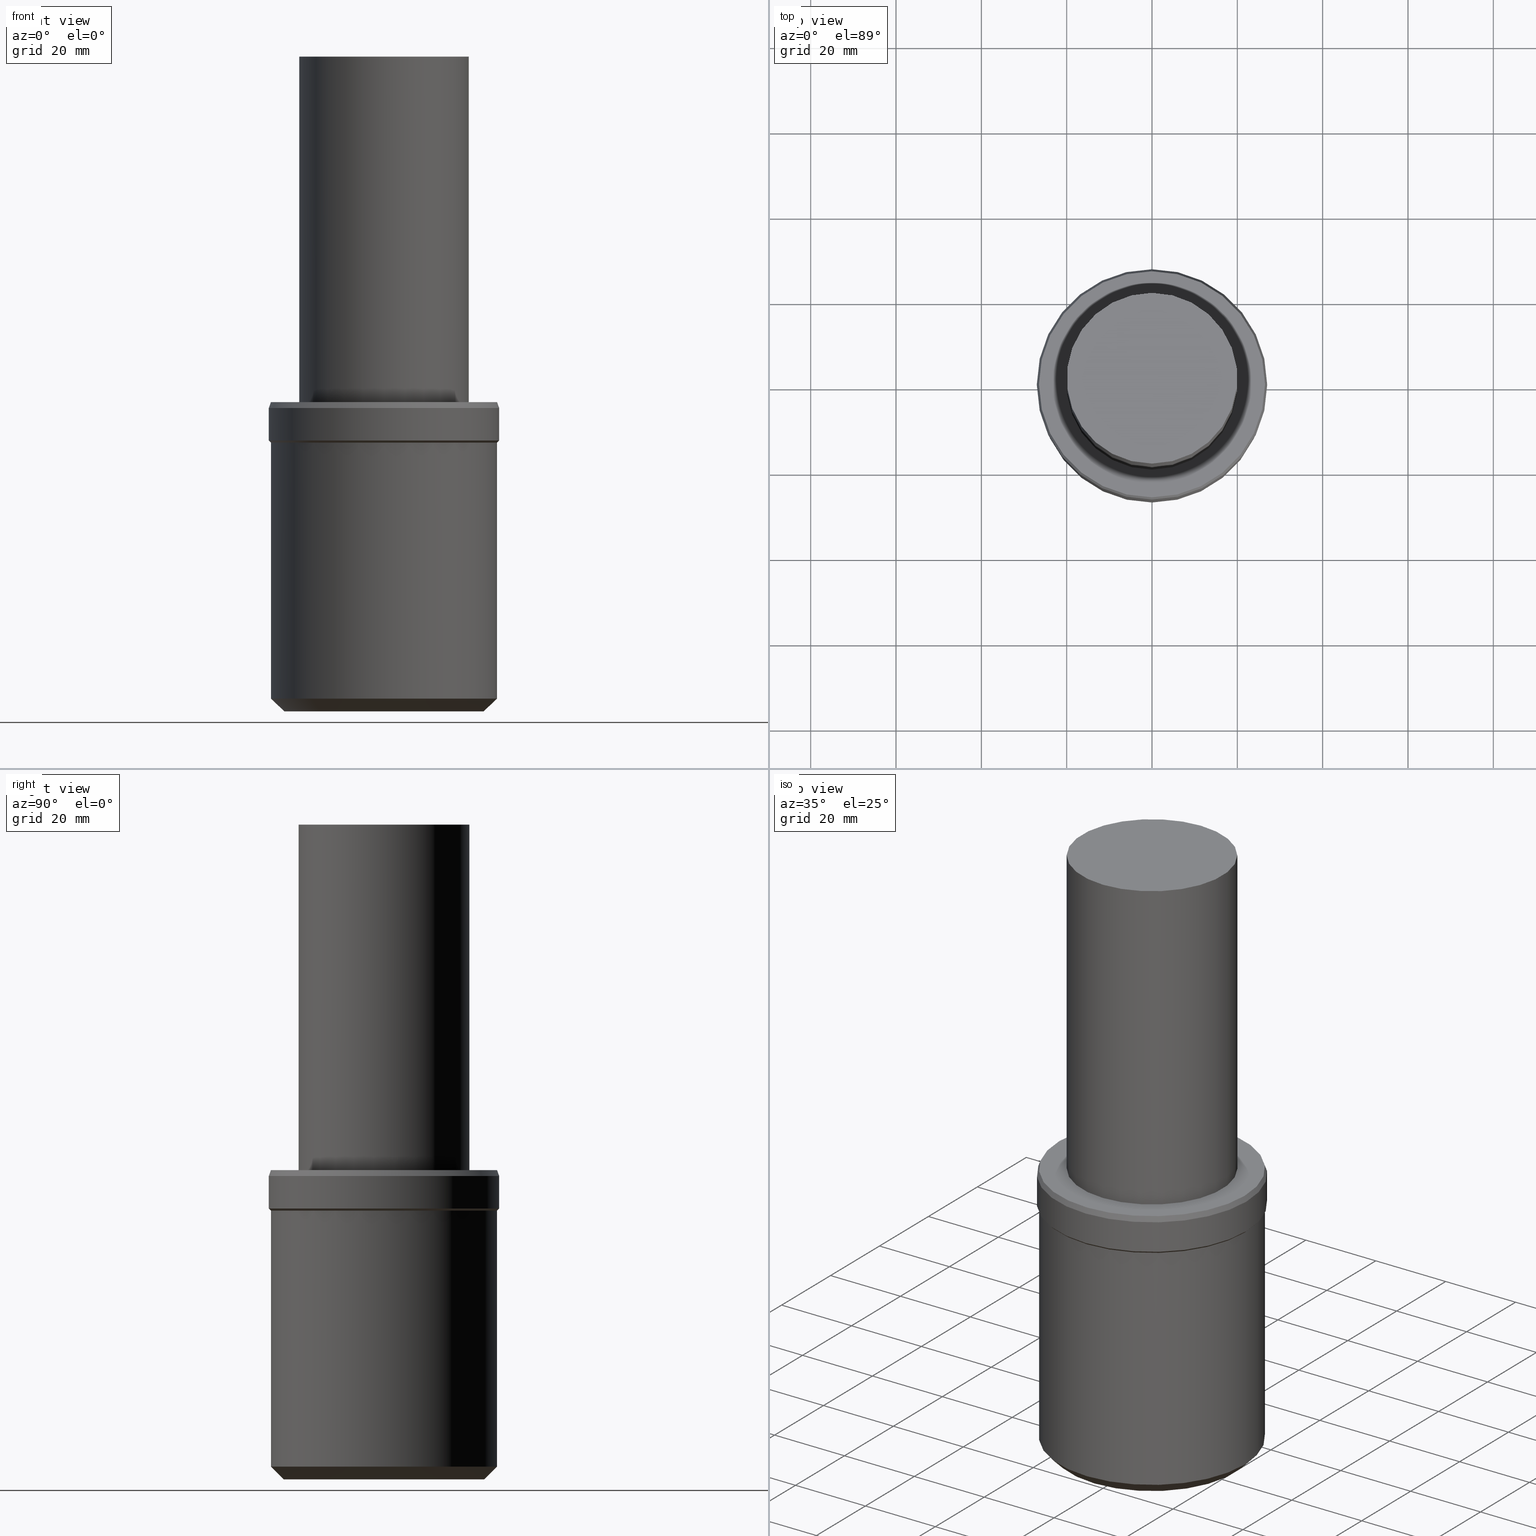
[diagram: canonical four-view strip — front | top / right | iso, engineering-drawing reading convention]
A machine part, canonical four-view strip (front | top / right | iso — engineering-drawing reading convention). The complete STEP part file that produces these views, byte-faithful:
ISO-10303-21;
HEADER;
FILE_DESCRIPTION((''),'1');
FILE_NAME('V:/02_3D_Field-HP\X2\FF71FF6FFF8CFF9F5916\X0\2013/02_Step_Field-HP\X2\FF71FF6FFF8CFF9F5916\X0\2013/31_\X2\30E130AC30B730F330AF30ED30BF30C330D430F330B030DB30EB30C0\X0\ MGT/MGT_ANSI_STEP/MGT36-AP1-2.5.stp','2018-02-02T01:19:14',(''),(''),'Spatial Interop R21 SP3','Kubotek KeyCreator 2011 V10.0.2 (22737)',' ');
FILE_SCHEMA(('automotive_design'));
ENDSEC;
DATA;
#1=MECHANICAL_DESIGN_GEOMETRIC_PRESENTATION_REPRESENTATION(' ',(#10,#11,#12,#13,#14,#15,#16,#17,#18,#19,#20,#21,#22,#23,#24,#25,#26,#27),#6);
#2=PRODUCT_DEFINITION_CONTEXT('',#28,'design');
#3=APPLICATION_PROTOCOL_DEFINITION('INTERNATIONAL STANDARD','automotive_design',1994,#28);
#4=PRODUCT_CATEGORY_RELATIONSHIP('NONE','NONE',#29,#30);
#5=SHAPE_DEFINITION_REPRESENTATION(#31,#32);
#6= (GEOMETRIC_REPRESENTATION_CONTEXT(3)GLOBAL_UNCERTAINTY_ASSIGNED_CONTEXT((#35))GLOBAL_UNIT_ASSIGNED_CONTEXT((#37,#38,#39))REPRESENTATION_CONTEXT('NONE','WORKSPACE'));
#10=STYLED_ITEM('',(#41),#42);
#11=STYLED_ITEM('',(#43),#44);
#12=STYLED_ITEM('',(#45,#46),#47);
#13=STYLED_ITEM('',(#48),#49);
#14=STYLED_ITEM('',(#50),#51);
#15=STYLED_ITEM('',(#52),#53);
#16=STYLED_ITEM('',(#54,#55),#56);
#17=STYLED_ITEM('',(#57,#58),#59);
#18=STYLED_ITEM('',(#60,#61),#62);
#19=STYLED_ITEM('',(#63,#64),#65);
#20=STYLED_ITEM('',(#66,#67),#68);
#21=STYLED_ITEM('',(#69),#70);
#22=STYLED_ITEM('',(#71),#72);
#23=STYLED_ITEM('',(#73,#74),#75);
#24=STYLED_ITEM('',(#76,#77),#78);
#25=STYLED_ITEM('',(#79,#80),#81);
#26=STYLED_ITEM('',(#82,#83),#84);
#27=STYLED_ITEM('',(#85),#86);
#28=APPLICATION_CONTEXT(' ');
#29=PRODUCT_CATEGORY('part','NONE');
#30=PRODUCT_RELATED_PRODUCT_CATEGORY('detail',' ',(#87));
#31=PRODUCT_DEFINITION_SHAPE('NONE','NONE',#88);
#32=ADVANCED_BREP_SHAPE_REPRESENTATION('Unnamed[1]',(#47,#89),#6);
#35=UNCERTAINTY_MEASURE_WITH_UNIT(LENGTH_MEASURE(1.0E-006),#37,'','');
#37= (CONVERSION_BASED_UNIT('MILLIMETRE',#92)LENGTH_UNIT()NAMED_UNIT(#95));
#38= (NAMED_UNIT(#97)PLANE_ANGLE_UNIT()SI_UNIT($,.RADIAN.));
#39= (NAMED_UNIT(#97)SOLID_ANGLE_UNIT()SI_UNIT($,.STERADIAN.));
#41=PRESENTATION_STYLE_ASSIGNMENT((#103));
#42=EDGE_CURVE('Unnamed[1]',#104,#104,#105,.T.);
#43=PRESENTATION_STYLE_ASSIGNMENT((#106));
#44=EDGE_CURVE('Unnamed[1]',#107,#107,#108,.T.);
#45=PRESENTATION_STYLE_ASSIGNMENT((#109));
#46=PRESENTATION_STYLE_ASSIGNMENT((#110));
#47=MANIFOLD_SOLID_BREP('Unnamed[1]',#111);
#48=PRESENTATION_STYLE_ASSIGNMENT((#112));
#49=EDGE_CURVE('Unnamed[1]',#113,#113,#114,.T.);
#50=PRESENTATION_STYLE_ASSIGNMENT((#115));
#51=EDGE_CURVE('Unnamed[1]',#116,#116,#117,.T.);
#52=PRESENTATION_STYLE_ASSIGNMENT((#118));
#53=EDGE_CURVE('Unnamed[1]',#119,#119,#120,.T.);
#54=PRESENTATION_STYLE_ASSIGNMENT((#121));
#55=PRESENTATION_STYLE_ASSIGNMENT((#122));
#56=ADVANCED_FACE('Unnamed[1]',(#123,#124),#125,.T.);
#57=PRESENTATION_STYLE_ASSIGNMENT((#126));
#58=PRESENTATION_STYLE_ASSIGNMENT((#127));
#59=ADVANCED_FACE('Unnamed[1]',(#128,#129),#130,.T.);
#60=PRESENTATION_STYLE_ASSIGNMENT((#131));
#61=PRESENTATION_STYLE_ASSIGNMENT((#132));
#62=ADVANCED_FACE('Unnamed[1]',(#133),#134,.T.);
#63=PRESENTATION_STYLE_ASSIGNMENT((#135));
#64=PRESENTATION_STYLE_ASSIGNMENT((#136));
#65=ADVANCED_FACE('Unnamed[1]',(#137),#138,.T.);
#66=PRESENTATION_STYLE_ASSIGNMENT((#139));
#67=PRESENTATION_STYLE_ASSIGNMENT((#140));
#68=ADVANCED_FACE('Unnamed[1]',(#141,#142),#143,.T.);
#69=PRESENTATION_STYLE_ASSIGNMENT((#144));
#70=EDGE_CURVE('Unnamed[1]',#145,#145,#146,.T.);
#71=PRESENTATION_STYLE_ASSIGNMENT((#147));
#72=EDGE_CURVE('Unnamed[1]',#148,#148,#149,.T.);
#73=PRESENTATION_STYLE_ASSIGNMENT((#150));
#74=PRESENTATION_STYLE_ASSIGNMENT((#151));
#75=ADVANCED_FACE('Unnamed[1]',(#152,#153),#154,.T.);
#76=PRESENTATION_STYLE_ASSIGNMENT((#155));
#77=PRESENTATION_STYLE_ASSIGNMENT((#156));
#78=ADVANCED_FACE('Unnamed[1]',(#157,#158),#159,.T.);
#79=PRESENTATION_STYLE_ASSIGNMENT((#160));
#80=PRESENTATION_STYLE_ASSIGNMENT((#161));
#81=ADVANCED_FACE('Unnamed[1]',(#162,#163),#164,.T.);
#82=PRESENTATION_STYLE_ASSIGNMENT((#165));
#83=PRESENTATION_STYLE_ASSIGNMENT((#166));
#84=ADVANCED_FACE('Unnamed[1]',(#167,#168),#169,.T.);
#85=PRESENTATION_STYLE_ASSIGNMENT((#170));
#86=EDGE_CURVE('Unnamed[1]',#171,#171,#172,.T.);
#87=PRODUCT('Unnamed[1]','Unnamed[1]','PART-Unnamed[1]-DESC',(#173));
#88=PRODUCT_DEFINITION('NONE','NONE',#174,#2);
#89=AXIS2_PLACEMENT_3D('',#175,#176,#177);
#92=LENGTH_MEASURE_WITH_UNIT(LENGTH_MEASURE(1.0),#178);
#95=DIMENSIONAL_EXPONENTS(1.0,0.0,0.0,0.0,0.0,0.0,0.0);
#97=DIMENSIONAL_EXPONENTS(0.0,0.0,0.0,0.0,0.0,0.0,0.0);
#103=CURVE_STYLE('',#179,POSITIVE_LENGTH_MEASURE(1000.0),#180);
#104=VERTEX_POINT('',#181);
#105=CIRCLE('',#182,26.4999999999955);
#106=CURVE_STYLE('',#183,POSITIVE_LENGTH_MEASURE(1000.0),#184);
#107=VERTEX_POINT('',#185);
#108=CIRCLE('',#186,19.9999999999954);
#109=SURFACE_STYLE_USAGE(.BOTH.,#187);
#110=CURVE_STYLE('',#188,POSITIVE_LENGTH_MEASURE(1000.0),#189);
#111=CLOSED_SHELL('',(#65,#59,#81,#68,#75,#56,#84,#78,#62));
#112=CURVE_STYLE('',#190,POSITIVE_LENGTH_MEASURE(1000.0),#191);
#113=VERTEX_POINT('',#192);
#114=CIRCLE('',#193,26.4999999999802);
#115=CURVE_STYLE('',#194,POSITIVE_LENGTH_MEASURE(1000.0),#195);
#116=VERTEX_POINT('',#196);
#117=CIRCLE('',#197,26.4999999999981);
#118=CURVE_STYLE('',#198,POSITIVE_LENGTH_MEASURE(1000.0),#199);
#119=VERTEX_POINT('',#200);
#120=CIRCLE('',#201,19.9999999999954);
#121=SURFACE_STYLE_USAGE(.BOTH.,#202);
#122=CURVE_STYLE('',#203,POSITIVE_LENGTH_MEASURE(1000.0),#204);
#123=FACE_BOUND('',#205,.T.);
#124=FACE_BOUND('',#206,.T.);
#125=CONICAL_SURFACE('',#207,26.7499999999881,0.785398163397487);
#126=SURFACE_STYLE_USAGE(.BOTH.,#208);
#127=CURVE_STYLE('',#209,POSITIVE_LENGTH_MEASURE(1000.0),#210);
#128=FACE_BOUND('',#211,.T.);
#129=FACE_BOUND('',#212,.T.);
#130=CYLINDRICAL_SURFACE('',#213,19.9999999999954);
#131=SURFACE_STYLE_USAGE(.BOTH.,#214);
#132=CURVE_STYLE('',#215,POSITIVE_LENGTH_MEASURE(1000.0),#216);
#133=FACE_OUTER_BOUND('',#217,.T.);
#134=PLANE('',#218);
#135=SURFACE_STYLE_USAGE(.BOTH.,#219);
#136=CURVE_STYLE('',#220,POSITIVE_LENGTH_MEASURE(1000.0),#221);
#137=FACE_OUTER_BOUND('',#222,.T.);
#138=PLANE('',#223);
#139=SURFACE_STYLE_USAGE(.BOTH.,#224);
#140=CURVE_STYLE('',#225,POSITIVE_LENGTH_MEASURE(1000.0),#226);
#141=FACE_BOUND('',#227,.T.);
#142=FACE_BOUND('',#228,.T.);
#143=CONICAL_SURFACE('',#229,26.7499999999792,0.349065850398424);
#144=CURVE_STYLE('',#230,POSITIVE_LENGTH_MEASURE(1000.0),#231);
#145=VERTEX_POINT('',#232);
#146=CIRCLE('',#233,26.9999999999782);
#147=CURVE_STYLE('',#234,POSITIVE_LENGTH_MEASURE(1000.0),#235);
#148=VERTEX_POINT('',#236);
#149=CIRCLE('',#237,23.5000000000065);
#150=SURFACE_STYLE_USAGE(.BOTH.,#238);
#151=CURVE_STYLE('',#239,POSITIVE_LENGTH_MEASURE(1000.0),#240);
#152=FACE_BOUND('',#241,.T.);
#153=FACE_BOUND('',#242,.T.);
#154=CYLINDRICAL_SURFACE('',#243,26.9999999999782);
#155=SURFACE_STYLE_USAGE(.BOTH.,#244);
#156=CURVE_STYLE('',#245,POSITIVE_LENGTH_MEASURE(1000.0),#246);
#157=FACE_BOUND('',#247,.T.);
#158=FACE_BOUND('',#248,.T.);
#159=CONICAL_SURFACE('',#249,25.000000000001,0.785398163397447);
#160=SURFACE_STYLE_USAGE(.BOTH.,#250);
#161=CURVE_STYLE('',#251,POSITIVE_LENGTH_MEASURE(1000.0),#252);
#162=FACE_OUTER_BOUND('',#253,.T.);
#163=FACE_BOUND('',#254,.T.);
#164=PLANE('',#255);
#165=SURFACE_STYLE_USAGE(.BOTH.,#256);
#166=CURVE_STYLE('',#257,POSITIVE_LENGTH_MEASURE(1000.0),#258);
#167=FACE_BOUND('',#259,.T.);
#168=FACE_BOUND('',#260,.T.);
#169=CYLINDRICAL_SURFACE('',#261,26.4999999999968);
#170=CURVE_STYLE('',#262,POSITIVE_LENGTH_MEASURE(1000.0),#263);
#171=VERTEX_POINT('',#264);
#172=CIRCLE('',#265,26.9999999999782);
#173=PRODUCT_CONTEXT('',#28,'mechanical');
#174=PRODUCT_DEFINITION_FORMATION_WITH_SPECIFIED_SOURCE(' ','NONE',#87,.NOT_KNOWN.);
#175=CARTESIAN_POINT('',(0.0,0.0,0.0));
#176=DIRECTION('',(0.0,0.0,1.0));
#177=DIRECTION('',(1.0,0.0,0.0));
#178= (NAMED_UNIT(#95)LENGTH_UNIT()SI_UNIT(.MILLI.,.METRE.));
#179=DRAUGHTING_PRE_DEFINED_CURVE_FONT('continuous');
#180=COLOUR_RGB('',0.0,1.0,0.0);
#181=CARTESIAN_POINT('',(-1.83697019871428E-016,26.4999999999955,2.99999999998899));
#182=AXIS2_PLACEMENT_3D('',#267,#268,#269);
#183=DRAUGHTING_PRE_DEFINED_CURVE_FONT('continuous');
#184=COLOUR_RGB('',0.0,1.0,0.0);
#185=CARTESIAN_POINT('',(-9.3991641834559E-015,19.9999999999954,153.499999999999));
#186=AXIS2_PLACEMENT_3D('',#270,#271,#272);
#187=SURFACE_SIDE_STYLE('',(#273));
#188=DRAUGHTING_PRE_DEFINED_CURVE_FONT('continuous');
#189=COLOUR_RGB('',0.0,1.0,0.0);
#190=DRAUGHTING_PRE_DEFINED_CURVE_FONT('continuous');
#191=COLOUR_RGB('',0.0,1.0,0.0);
#192=CARTESIAN_POINT('',(-4.43934464690906E-015,26.4999999999802,72.4999999999984));
#193=AXIS2_PLACEMENT_3D('',#274,#275,#276);
#194=DRAUGHTING_PRE_DEFINED_CURVE_FONT('continuous');
#195=COLOUR_RGB('',0.0,1.0,0.0);
#196=CARTESIAN_POINT('',(-3.85763741731372E-015,26.499999999998,62.9999999999928));
#197=AXIS2_PLACEMENT_3D('',#277,#278,#279);
#198=DRAUGHTING_PRE_DEFINED_CURVE_FONT('continuous');
#199=COLOUR_RGB('',0.0,1.0,0.0);
#200=CARTESIAN_POINT('',(-4.43934464690906E-015,19.9999999999954,72.4999999999984));
#201=AXIS2_PLACEMENT_3D('',#280,#281,#282);
#202=SURFACE_SIDE_STYLE('',(#283));
#203=DRAUGHTING_PRE_DEFINED_CURVE_FONT('continuous');
#204=COLOUR_RGB('',0.0,1.0,0.0);
#205=EDGE_LOOP('',(#284));
#206=EDGE_LOOP('',(#285));
#207=AXIS2_PLACEMENT_3D('',#286,#287,#288);
#208=SURFACE_SIDE_STYLE('',(#289));
#209=DRAUGHTING_PRE_DEFINED_CURVE_FONT('continuous');
#210=COLOUR_RGB('',0.0,1.0,0.0);
#211=EDGE_LOOP('',(#290));
#212=EDGE_LOOP('',(#291));
#213=AXIS2_PLACEMENT_3D('',#292,#293,#294);
#214=SURFACE_SIDE_STYLE('',(#295));
#215=DRAUGHTING_PRE_DEFINED_CURVE_FONT('continuous');
#216=COLOUR_RGB('',0.0,1.0,0.0);
#217=EDGE_LOOP('',(#296));
#218=AXIS2_PLACEMENT_3D('',#297,#298,#299);
#219=SURFACE_SIDE_STYLE('',(#300));
#220=DRAUGHTING_PRE_DEFINED_CURVE_FONT('continuous');
#221=COLOUR_RGB('',0.0,1.0,0.0);
#222=EDGE_LOOP('',(#301));
#223=AXIS2_PLACEMENT_3D('',#302,#303,#304);
#224=SURFACE_SIDE_STYLE('',(#305));
#225=DRAUGHTING_PRE_DEFINED_CURVE_FONT('continuous');
#226=COLOUR_RGB('',0.0,1.0,0.0);
#227=EDGE_LOOP('',(#306));
#228=EDGE_LOOP('',(#307));
#229=AXIS2_PLACEMENT_3D('',#308,#309,#310);
#230=DRAUGHTING_PRE_DEFINED_CURVE_FONT('continuous');
#231=COLOUR_RGB('',0.0,1.0,0.0);
#232=CARTESIAN_POINT('',(-3.88825358729119E-015,26.9999999999782,63.4999999999729));
#233=AXIS2_PLACEMENT_3D('',#311,#312,#313);
#234=DRAUGHTING_PRE_DEFINED_CURVE_FONT('continuous');
#235=COLOUR_RGB('',0.0,1.0,0.0);
#236=CARTESIAN_POINT('',(0.0,23.5000000000065,0.0));
#237=AXIS2_PLACEMENT_3D('',#314,#315,#316);
#238=SURFACE_SIDE_STYLE('',(#317));
#239=DRAUGHTING_PRE_DEFINED_CURVE_FONT('continuous');
#240=COLOUR_RGB('',0.0,1.0,0.0);
#241=EDGE_LOOP('',(#318));
#242=EDGE_LOOP('',(#319));
#243=AXIS2_PLACEMENT_3D('',#320,#321,#322);
#244=SURFACE_SIDE_STYLE('',(#323));
#245=DRAUGHTING_PRE_DEFINED_CURVE_FONT('continuous');
#246=COLOUR_RGB('',0.0,1.0,0.0);
#247=EDGE_LOOP('',(#324));
#248=EDGE_LOOP('',(#325));
#249=AXIS2_PLACEMENT_3D('',#326,#327,#328);
#250=SURFACE_SIDE_STYLE('',(#329));
#251=DRAUGHTING_PRE_DEFINED_CURVE_FONT('continuous');
#252=COLOUR_RGB('',0.0,1.0,0.0);
#253=EDGE_LOOP('',(#330));
#254=EDGE_LOOP('',(#331));
#255=AXIS2_PLACEMENT_3D('',#332,#333,#334);
#256=SURFACE_SIDE_STYLE('',(#335));
#257=DRAUGHTING_PRE_DEFINED_CURVE_FONT('continuous');
#258=COLOUR_RGB('',0.0,1.0,0.0);
#259=EDGE_LOOP('',(#336));
#260=EDGE_LOOP('',(#337));
#261=AXIS2_PLACEMENT_3D('',#338,#339,#340);
#262=DRAUGHTING_PRE_DEFINED_CURVE_FONT('continuous');
#263=COLOUR_RGB('',0.0,1.0,0.0);
#264=CARTESIAN_POINT('',(-4.35522741122266E-015,26.9999999999782,71.1262612902747));
#265=AXIS2_PLACEMENT_3D('',#341,#342,#343);
#267=CARTESIAN_POINT('',(-1.83697019871428E-016,-3.67394039742856E-016,2.99999999998899));
#268=DIRECTION('',(6.12323399573677E-017,1.22464679914735E-016,-1.0));
#269=DIRECTION('',(-1.23259516440783E-032,1.0,1.22464679914735E-016));
#270=CARTESIAN_POINT('',(-9.3991641834559E-015,-1.87983283669118E-014,153.499999999999));
#271=DIRECTION('',(6.12323399573677E-017,1.22464679914735E-016,-1.0));
#272=DIRECTION('',(-1.23259516440783E-032,1.0,1.22464679914735E-016));
#273=SURFACE_STYLE_FILL_AREA(#344);
#274=CARTESIAN_POINT('',(-4.43934464690906E-015,-8.87868929381811E-015,72.4999999999984));
#275=DIRECTION('',(6.12323399573677E-017,1.22464679914735E-016,-1.0));
#276=DIRECTION('',(-1.23259516440783E-032,1.0,1.22464679914735E-016));
#277=CARTESIAN_POINT('',(-3.85763741731372E-015,-7.71527483462744E-015,62.9999999999928));
#278=DIRECTION('',(6.12323399573677E-017,1.22464679914735E-016,-1.0));
#279=DIRECTION('',(-1.23259516440783E-032,1.0,1.22464679914735E-016));
#280=CARTESIAN_POINT('',(-4.43934464690906E-015,-8.87868929381811E-015,72.4999999999984));
#281=DIRECTION('',(6.12323399573677E-017,1.22464679914735E-016,-1.0));
#282=DIRECTION('',(-1.23259516440783E-032,1.0,1.22464679914735E-016));
#283=SURFACE_STYLE_FILL_AREA(#345);
#284=ORIENTED_EDGE('',*,*,#51,.F.);
#285=ORIENTED_EDGE('',*,*,#70,.T.);
#286=CARTESIAN_POINT('',(-3.87294550230245E-015,-7.74589100460491E-015,63.2499999999828));
#287=DIRECTION('',(-6.12323399573677E-017,-1.22464679914735E-016,1.0));
#288=DIRECTION('',(-1.23259516440783E-032,1.0,1.22464679914735E-016));
#289=SURFACE_STYLE_FILL_AREA(#346);
#290=ORIENTED_EDGE('',*,*,#53,.F.);
#291=ORIENTED_EDGE('',*,*,#44,.T.);
#292=CARTESIAN_POINT('',(-6.91925441518248E-015,-1.3838508830365E-014,112.999999999999));
#293=DIRECTION('',(6.12323399573677E-017,1.22464679914735E-016,-1.0));
#294=DIRECTION('',(-1.23259516440783E-032,1.0,1.22464679914735E-016));
#295=SURFACE_STYLE_FILL_AREA(#347);
#296=ORIENTED_EDGE('',*,*,#72,.T.);
#297=CARTESIAN_POINT('',(0.0,11.7500000000032,0.0));
#298=DIRECTION('',(6.12323399573677E-017,1.22464679914735E-016,-1.0));
#299=DIRECTION('',(-1.23259516440783E-032,1.0,1.22464679914735E-016));
#300=SURFACE_STYLE_FILL_AREA(#348);
#301=ORIENTED_EDGE('',*,*,#44,.F.);
#302=CARTESIAN_POINT('',(-9.39916418345587E-015,9.99999999999771,153.499999999999));
#303=DIRECTION('',(-6.12323399573677E-017,-4.91499134473728E-014,1.0));
#304=DIRECTION('',(3.0143913618155E-030,-1.0,-4.91499134473728E-014));
#305=SURFACE_STYLE_FILL_AREA(#349);
#306=ORIENTED_EDGE('',*,*,#86,.F.);
#307=ORIENTED_EDGE('',*,*,#49,.T.);
#308=CARTESIAN_POINT('',(-4.39728602906586E-015,-8.79457205813172E-015,71.8131306451366));
#309=DIRECTION('',(6.12323399573677E-017,1.22464679914735E-016,-1.0));
#310=DIRECTION('',(-1.23259516440783E-032,1.0,1.22464679914735E-016));
#311=CARTESIAN_POINT('',(-3.88825358729119E-015,-7.77650717458237E-015,63.4999999999729));
#312=DIRECTION('',(6.12323399573677E-017,1.22464679914735E-016,-1.0));
#313=DIRECTION('',(-1.23259516440783E-032,1.0,1.22464679914735E-016));
#314=CARTESIAN_POINT('',(0.0,0.0,0.0));
#315=DIRECTION('',(6.12323399573677E-017,1.22464679914735E-016,-1.0));
#316=DIRECTION('',(-1.23259516440783E-032,1.0,1.22464679914735E-016));
#317=SURFACE_STYLE_FILL_AREA(#350);
#318=ORIENTED_EDGE('',*,*,#70,.F.);
#319=ORIENTED_EDGE('',*,*,#86,.T.);
#320=CARTESIAN_POINT('',(-4.12174049925692E-015,-8.24348099851384E-015,67.3131306451238));
#321=DIRECTION('',(6.12323399573677E-017,1.22464679914735E-016,-1.0));
#322=DIRECTION('',(-1.23259516440783E-032,1.0,1.22464679914735E-016));
#323=SURFACE_STYLE_FILL_AREA(#351);
#324=ORIENTED_EDGE('',*,*,#72,.F.);
#325=ORIENTED_EDGE('',*,*,#42,.T.);
#326=CARTESIAN_POINT('',(-9.18485099357145E-017,-1.83697019871427E-016,1.49999999999449));
#327=DIRECTION('',(-6.12323399573677E-017,-1.22464679914735E-016,1.0));
#328=DIRECTION('',(-1.23259516440783E-032,1.0,1.22464679914735E-016));
#329=SURFACE_STYLE_FILL_AREA(#352);
#330=ORIENTED_EDGE('',*,*,#49,.F.);
#331=ORIENTED_EDGE('',*,*,#53,.T.);
#332=CARTESIAN_POINT('',(-4.43934464690906E-015,23.2499999999878,72.4999999999984));
#333=DIRECTION('',(-6.12323399573677E-017,1.50820987685946E-016,1.0));
#334=DIRECTION('',(-4.40796925992276E-033,-1.0,1.50820987685946E-016));
#335=SURFACE_STYLE_FILL_AREA(#353);
#336=ORIENTED_EDGE('',*,*,#42,.F.);
#337=ORIENTED_EDGE('',*,*,#51,.T.);
#338=CARTESIAN_POINT('',(-2.02066721859258E-015,-4.04133443718515E-015,32.9999999999909));
#339=DIRECTION('',(6.12323399573677E-017,1.22464679914735E-016,-1.0));
#340=DIRECTION('',(-1.23259516440783E-032,1.0,1.22464679914735E-016));
#341=CARTESIAN_POINT('',(-4.35522741122266E-015,-8.71045482244532E-015,71.1262612902747));
#342=DIRECTION('',(6.12323399573677E-017,1.22464679914735E-016,-1.0));
#343=DIRECTION('',(-1.23259516440783E-032,1.0,1.22464679914735E-016));
#344=FILL_AREA_STYLE('',(#354));
#345=FILL_AREA_STYLE('',(#355));
#346=FILL_AREA_STYLE('',(#356));
#347=FILL_AREA_STYLE('',(#357));
#348=FILL_AREA_STYLE('',(#358));
#349=FILL_AREA_STYLE('',(#359));
#350=FILL_AREA_STYLE('',(#360));
#351=FILL_AREA_STYLE('',(#361));
#352=FILL_AREA_STYLE('',(#362));
#353=FILL_AREA_STYLE('',(#363));
#354=FILL_AREA_STYLE_COLOUR('',#364);
#355=FILL_AREA_STYLE_COLOUR('',#365);
#356=FILL_AREA_STYLE_COLOUR('',#366);
#357=FILL_AREA_STYLE_COLOUR('',#367);
#358=FILL_AREA_STYLE_COLOUR('',#368);
#359=FILL_AREA_STYLE_COLOUR('',#369);
#360=FILL_AREA_STYLE_COLOUR('',#370);
#361=FILL_AREA_STYLE_COLOUR('',#371);
#362=FILL_AREA_STYLE_COLOUR('',#372);
#363=FILL_AREA_STYLE_COLOUR('',#373);
#364=COLOUR_RGB('',0.0,1.0,0.0);
#365=COLOUR_RGB('',0.0,1.0,0.0);
#366=COLOUR_RGB('',0.0,1.0,0.0);
#367=COLOUR_RGB('',0.0,1.0,0.0);
#368=COLOUR_RGB('',0.0,1.0,0.0);
#369=COLOUR_RGB('',0.0,1.0,0.0);
#370=COLOUR_RGB('',0.0,1.0,0.0);
#371=COLOUR_RGB('',0.0,1.0,0.0);
#372=COLOUR_RGB('',0.0,1.0,0.0);
#373=COLOUR_RGB('',0.0,1.0,0.0);
ENDSEC;
END-ISO-10303-21;
